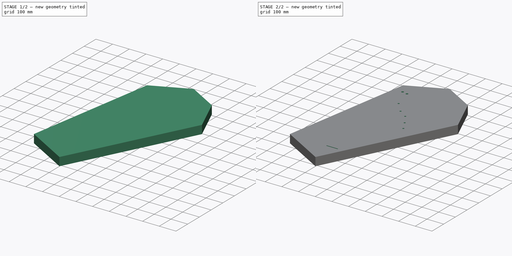
[diagram: build sequence overview — one tinted view per stage of 2, left to right]
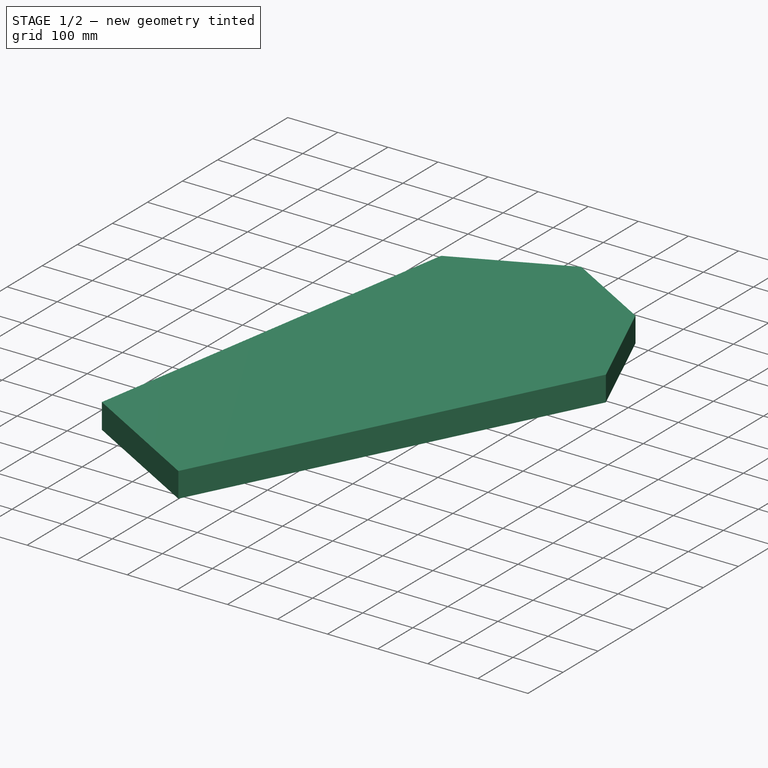
[diagram: stage 1 of 2 — iso view after this stage's code; geometry added in this stage tinted green]
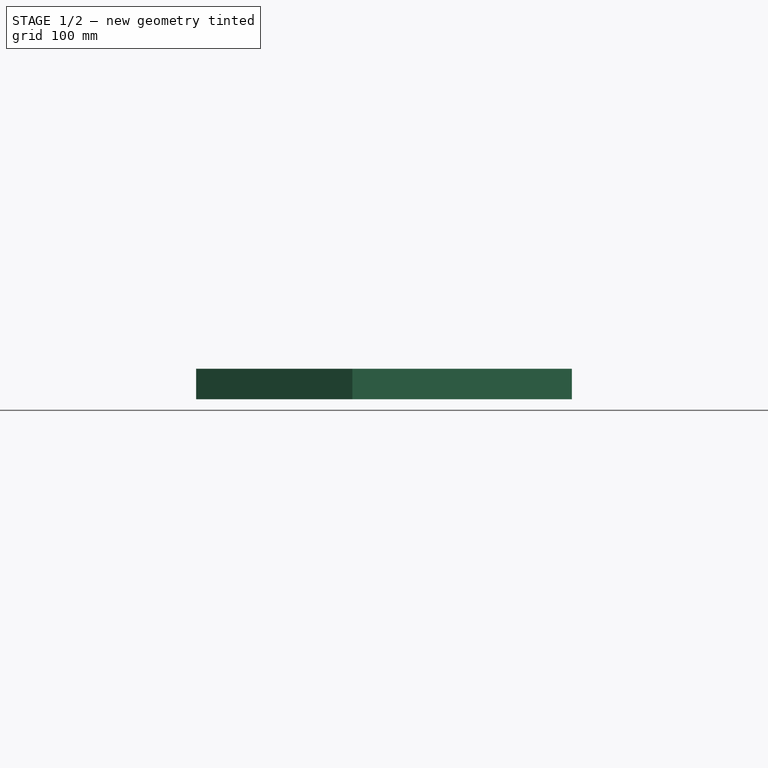
[diagram: stage 1 of 2 — front view after this stage's code; geometry added in this stage tinted green]
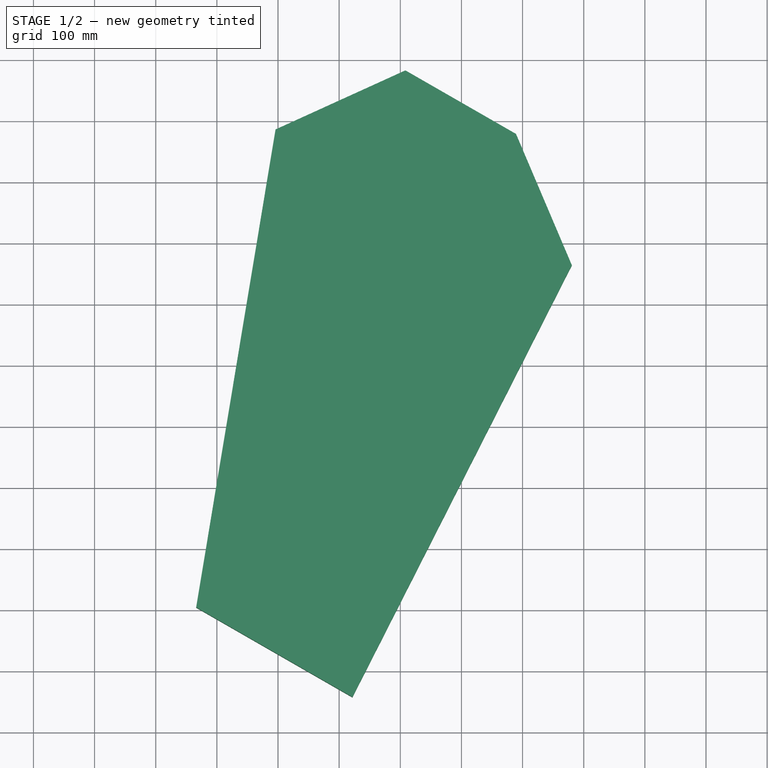
[diagram: stage 1 of 2 — top view after this stage's code; geometry added in this stage tinted green]
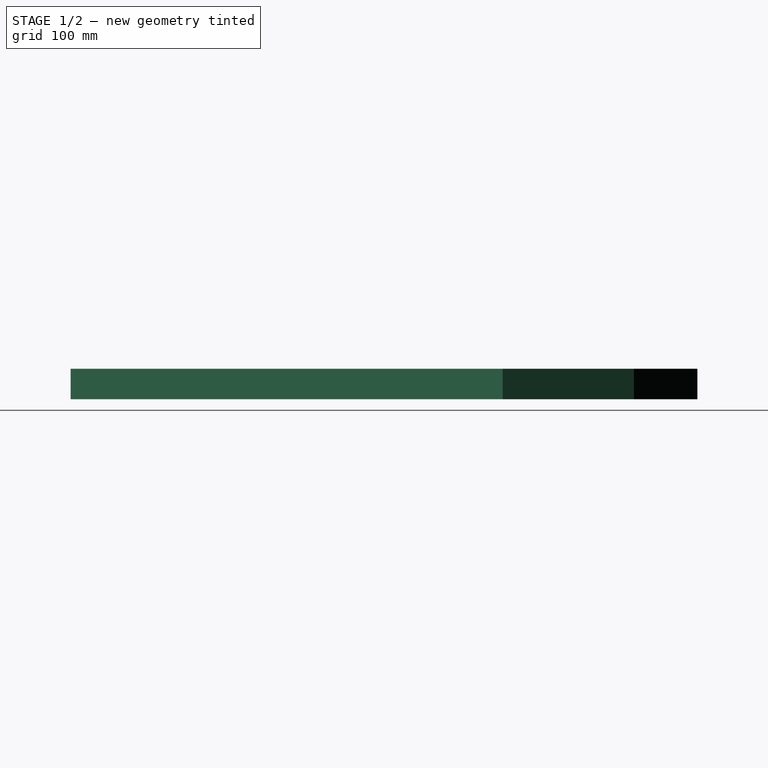
[diagram: stage 1 of 2 — right view after this stage's code; geometry added in this stage tinted green]
FCSTD DOCUMENT  (FreeCAD 1.0R39319 (Git))
Label: my_kantele
License: All rights reserved
LicenseURL: https://en.wikipedia.org/wiki/All_rights_reserved
objects: Sketcher::SketchObject×2, Spreadsheet::Sheet×1, PartDesign::Pad×1, PartDesign::Pocket×1, PartDesign::Body×1
note: 11 computed .brp shape members not serialized (recipe doc carries the construction recipe); baked Part::Feature solids carry a one-line shape summary decoded from their .brp

FEATURE [Spreadsheet::Sheet] Spreadsheet
  cells = A1='Inputs; B1='melody; C1='drone; A2='UW (lbf/in); B2=0.00073039; C2=0.00096833; A3='Anchor physical length L_phys (mm) for D2; B3=600; C3=700; A4='End correction Δ_end (mm); B4=0; C4=0; A5='g (m/s^2); B5=9.80665; A7='lbf→N; B7=4.4482; A8='in→mm; B8==0.0254 * 1000; A12='Derived; B12='melody; C12='drone; A13='μ (kg/m); B13==B2 * 4.448221615 / 0.0254 / 9.80665; C13==C2 * 4.448221615 / 0.0254 / 9.80665; A15='Anchor effective length L_eff (mm); B15==B3 - B4; C15==C3 - C4; A17='Note; B17='Freq (Hz); C17='L_eff (mm); D17='L_phys (mm); E17='μ (kg/m); F17='T (N); G17='T (kgf); A18='D2; B18=73.42; C18==B15; D18(stD)==C18 + $B$4; E18==$B$13; F18==4 * (C18 / 1000) ^ 2 * B18 ^ 2 * E18; G18==F18 / $B$5; A19='E2; B19=82.41; C19==$C$18 * $B$18 / B19; D19(stE)==C19 + $B$4; E19==$B$13; F19==4 * (C19 / 1000) ^ 2 * B19 ^ 2 * E19; G19==F19 / $B$5; A20='F2; B20=87.31; C20==$C$18 * $B$18 / B20; D20(stF)==C20 + $B$4; E20==$B$13; F20==4 * (C20 / 1000) ^ 2 * B20 ^ 2 * E20; G20==F20 / $B$5; A21='G2; B21=98; C21==$C$18 * $B$18 / B21; D21(stG)==C21 + $B$4; E21==$B$13; F21==4 * (C21 / 1000) ^ 2 * B21 ^ 2 * E21; G21==F21 / $B$5; A22='A2; B22=110; C22==$C$18 * $B$18 / B22; D22(stA)==C22 + $B$4; E22==$B$13; F22==4 * (C22 / 1000) ^ 2 * B22 ^ 2 * E22; G22==F22 / $B$5; A23='DRONE D1; B23=36.71; C23==C3; D23(stDRONE)==C23 + $C$4; E23==$C$13; F23==4 * (C23 / 1000) ^ 2 * B23 ^ 2 * E23; G23==F23 / $B$5; A24='DRONE A1; B24=55; C24==C3; D24(stDRONEA)==C24 + $C$4; E24==$C$13; F24==4 * (C24 / 1000) ^ 2 * B24 ^ 2 * E24; G24==F24 / $B$5
FEATURE [Sketcher::SketchObject] Sketch001
  ArcFitTolerance = 1e-06
  AttachmentSupport = -> [XY_Plane]
  FullyConstrained = false
  MakeInternals = false
  MapMode = 2
  sketch-geometry (6):
    g0: LineSegment StartX=21.6584 StartY=-142.397 StartZ=0 EndX=380.553 EndY=564.152 EndZ=0
    g1: LineSegment StartX=-104.03 StartY=786.198 StartZ=0 EndX=-233.879 EndY=4.43323 EndZ=0
    g2: LineSegment StartX=-233.879 StartY=4.43323 StartZ=0 EndX=21.6584 EndY=-142.397 EndZ=0
    g3: LineSegment StartX=-104.03 StartY=786.198 StartZ=0 EndX=108.36 EndY=882.79 EndZ=0
    g4: LineSegment StartX=108.36 StartY=882.79 StartZ=0 EndX=289.233 EndY=778.861 EndZ=0
    g5: LineSegment StartX=289.233 StartY=778.861 StartZ=0 EndX=380.553 EndY=564.152 EndZ=0
  constraints (9):
    c: Coincident(g2,g1)
    c: Coincident(g2,g0)
    c: Equal(g1,g0)
    c: Coincident(g3,g1)
    c: Coincident(g4,g3)
    c: Coincident(g5,g4)
    c: Coincident(g5,g0)
    c: Parallel(g2,g4)
    c: Equal(g3,g5)
FEATURE [PartDesign::Pad] Pad
  Direction = (0,0,1)
  Length = 50
  Length2 = 10
  Profile = -> Sketch001
  ReferenceAxis = -> Sketch001 [N_Axis]
  Refine = true
  Reversed = true
  Suppressed = false
  Type = 0
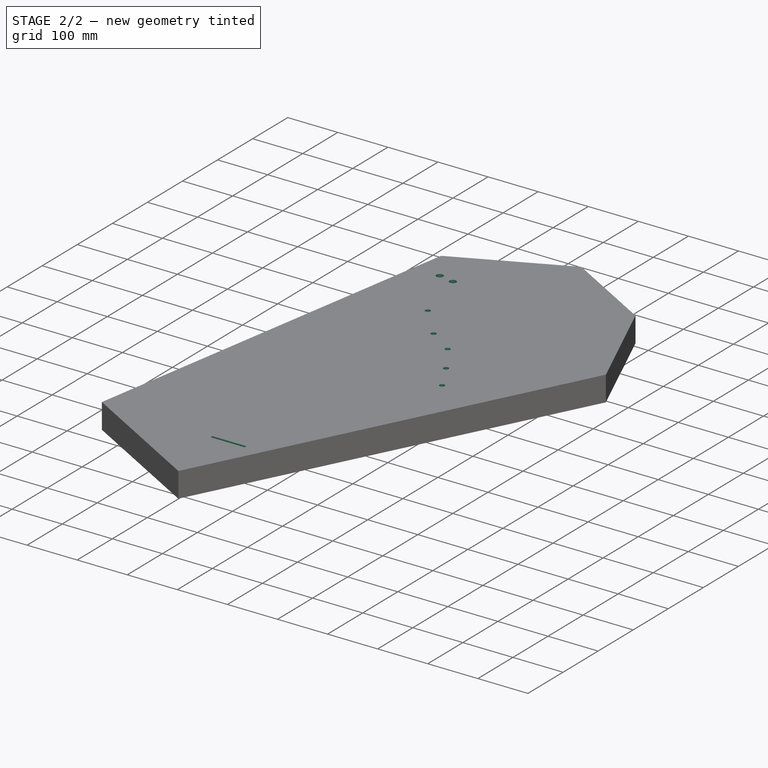
[diagram: stage 2 of 2 — iso view after this stage's code; geometry added in this stage tinted green]
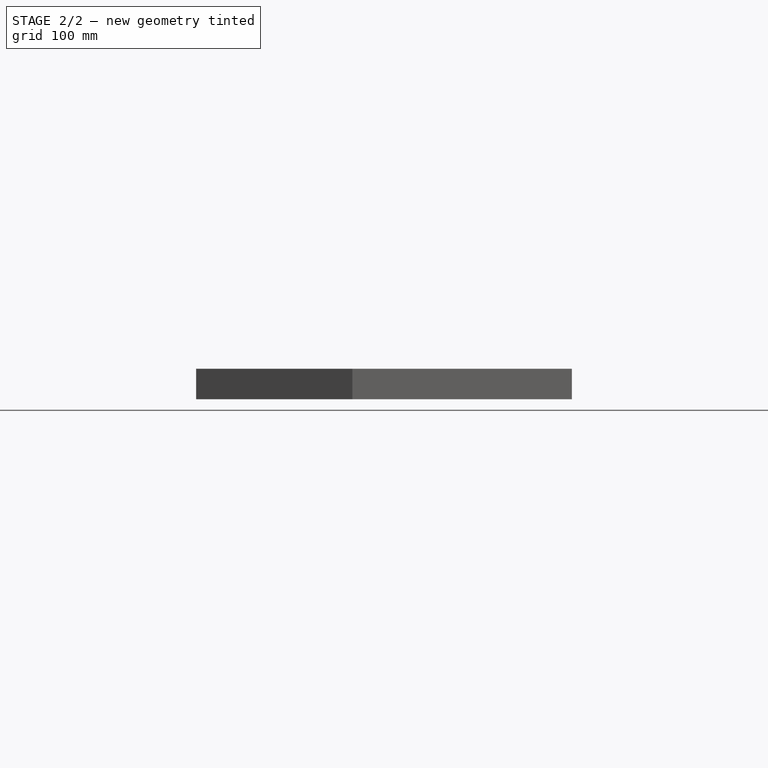
[diagram: stage 2 of 2 — front view after this stage's code; geometry added in this stage tinted green]
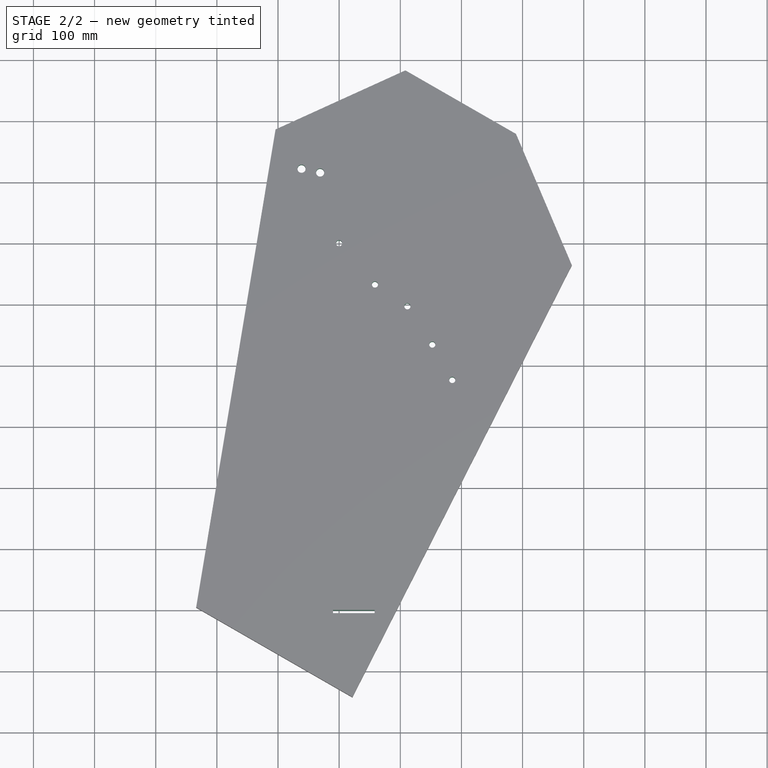
[diagram: stage 2 of 2 — top view after this stage's code; geometry added in this stage tinted green]
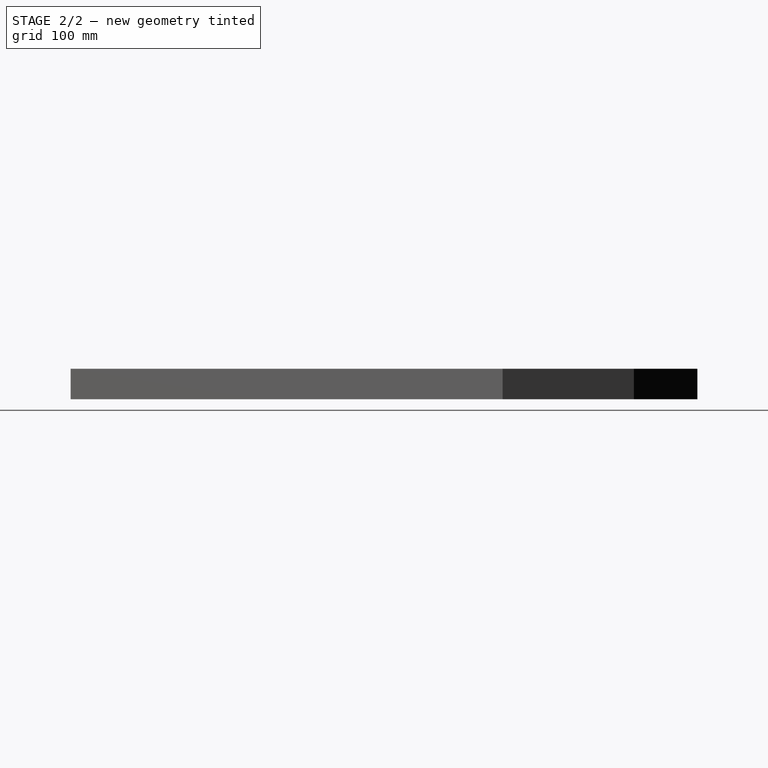
[diagram: stage 2 of 2 — right view after this stage's code; geometry added in this stage tinted green]
FEATURE [Sketcher::SketchObject] Sketch
  ArcFitTolerance = 1e-06
  AttachmentSupport = -> [Pad]
  ExternalGeometry = -> [Pad]
  FullyConstrained = false
  MakeInternals = false
  expr: Constraints[0] = Spreadsheet.stD
  expr: Constraints[10] = Spreadsheet.stDRONE
  expr: Constraints[2] = Spreadsheet.stE
  expr: Constraints[4] = Spreadsheet.stF
  expr: Constraints[6] = Spreadsheet.stG
  expr: Constraints[8] = Spreadsheet.stA
  sketch-geometry (18):
    g0: LineSegment [constr] StartX=0 StartY=0 StartZ=0 EndX=0 EndY=600 EndZ=0
    g1: LineSegment [constr] StartX=12 StartY=0 StartZ=0 EndX=58.5888 EndY=532.513 EndZ=0
    g2: LineSegment [constr] StartX=24 StartY=0 StartZ=0 EndX=111.614 EndY=496.882 EndZ=0
    g3: LineSegment [constr] StartX=36 StartY=0 StartZ=0 EndX=152.342 EndY=434.194 EndZ=0
    g4: LineSegment [constr] StartX=48 StartY=0 StartZ=0 EndX=184.97 EndY=376.321 EndZ=0
    g5: LineSegment [constr] StartX=-145.805 StartY=25.1481 StartZ=0 EndX=-31.1088 EndY=715.688 EndZ=0
    g6: Circle CenterX=0 CenterY=600 CenterZ=0 NormalX=0 NormalY=0 NormalZ=1 AngleXU=0 Radius=5
    g7: Circle CenterX=58.5888 CenterY=532.513 CenterZ=0 NormalX=0 NormalY=0 NormalZ=1 AngleXU=0 Radius=5
    g8: Circle CenterX=111.614 CenterY=496.882 CenterZ=0 NormalX=0 NormalY=0 NormalZ=1 AngleXU=0 Radius=5
    g9: Circle CenterX=152.342 CenterY=434.194 CenterZ=0 NormalX=0 NormalY=0 NormalZ=1 AngleXU=0 Radius=5
    g10: Circle CenterX=184.97 CenterY=376.321 CenterZ=0 NormalX=0 NormalY=0 NormalZ=1 AngleXU=0 Radius=5
    g11: Circle CenterX=-31.1088 CenterY=715.688 CenterZ=0 NormalX=0 NormalY=0 NormalZ=1 AngleXU=0 Radius=6.60459
    g12: LineSegment StartX=-10 StartY=0 StartZ=0 EndX=-10 EndY=-5 EndZ=0
    g13: LineSegment StartX=-10 StartY=-5 StartZ=0 EndX=58 EndY=-5 EndZ=0
    g14: LineSegment StartX=58 StartY=-5 StartZ=0 EndX=58 EndY=0 EndZ=0
    g15: LineSegment StartX=58 StartY=0 StartZ=0 EndX=-10 EndY=0 EndZ=0
    g16: LineSegment [constr] StartX=-176.239 StartY=31.3341 StartZ=0 EndX=-61.5421 EndY=721.874 EndZ=0
    g17: Circle CenterX=-61.5421 CenterY=721.874 CenterZ=0 NormalX=0 NormalY=0 NormalZ=1 AngleXU=0 Radius=6.60459
  constraints (49):
    c: Distance(g0) = 600
    c: PointOnObject(g0,g-1)
    c: Distance(g1) = 534.547
    c: PointOnObject(g1,g-1)
    c: Distance(g2) = 504.547
    c: PointOnObject(g2,g-1)
    c: Distance(g3) = 449.51
    c: PointOnObject(g3,g-1)
    c: Distance(g4) = 400.473
    c: PointOnObject(g4,g-1)
    c: Distance(g5) = 700
    c: DistanceX(g0,g1) = 12
    c: DistanceX(g1,g2) = 12
    c: DistanceX(g2,g3) = 12
    c: DistanceX(g3,g4) = 12
    c: Vertical(g0)
    c: PointOnObject(g0,g-2)
    c: Angle(g-1,g4) = 1.22173
    c: Angle(g-1,g3) = 1.309
    c: Angle(g-1,g2) = 1.39626
    c: Angle(g-1,g1) = 1.48353
    c: Diameter(g6) = 10
    c: Coincident(g6,g0)
    c: Coincident(g7,g1)
    c: Coincident(g8,g2)
    c: Coincident(g9,g3)
    c: Coincident(g10,g4)
    c: Equal(g10,g6)
    c: Equal(g9,g6)
    c: Equal(g8,g6)
    c: Equal(g7,g6)
    c: Coincident(g11,g5)
    c: Coincident(g12,g13)
    c: Coincident(g13,g14)
    c: Coincident(g14,g15)
    c: Coincident(g15,g12)
    c: Vertical(g12)
    c: Vertical(g14)
    c: Horizontal(g13)
    c: Horizontal(g15)
    c: PointOnObject(g12,g-1)
    c: DistanceX(g4,g14) = 10
    c: DistanceY(g14,g14) = 5
    c: DistanceX(g12,g0) = 10
    c: Distance(g16) = 700
    c: Coincident(g17,g16)
    c: Equal(g17,g11)
    c: Parallel(g16,g-3)
    c: Parallel(g5,g16)
FEATURE [PartDesign::Pocket] Pocket
  BaseFeature = -> Pad
  Direction = (0,0,-1)
  Length = 5
  Length2 = 5
  Profile = -> Sketch
  ReferenceAxis = -> Sketch [N_Axis]
  Refine = true
  Suppressed = false
  Type = 1
FEATURE [PartDesign::Body] Body
  AllowCompound = false
  Group = -> [Sketch001,Sketch,Pad,Pocket]
  Origin = -> Origin
  Tip = -> Pocket
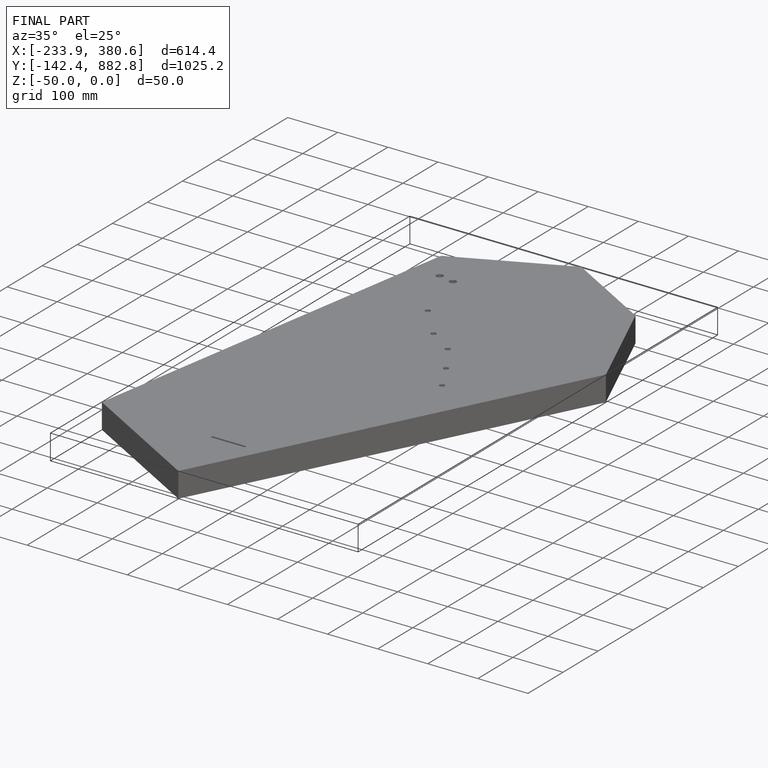
[diagram: finished part — iso view with bounding-box wireframe]
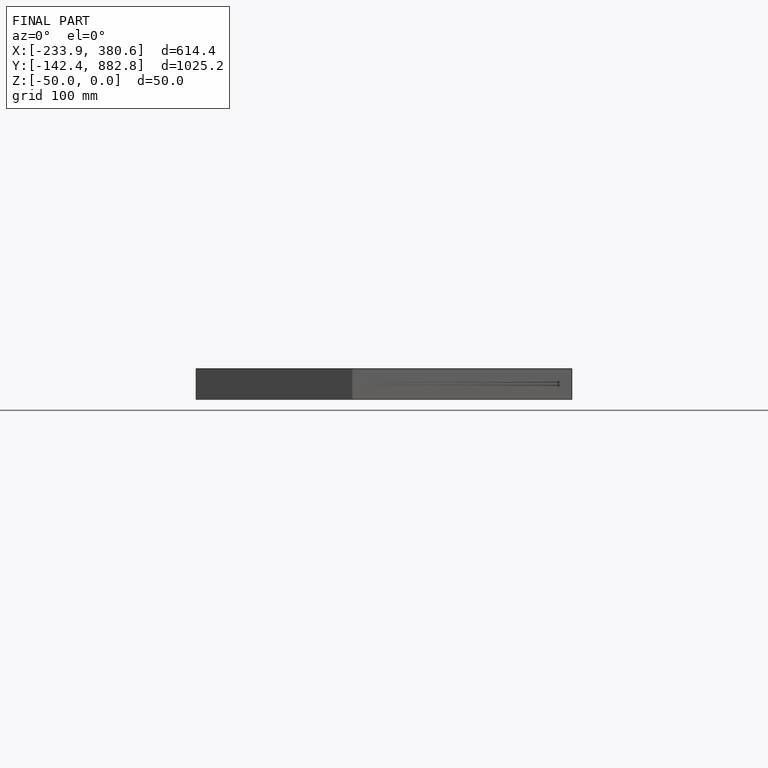
[diagram: finished part — front view with bounding-box wireframe]
